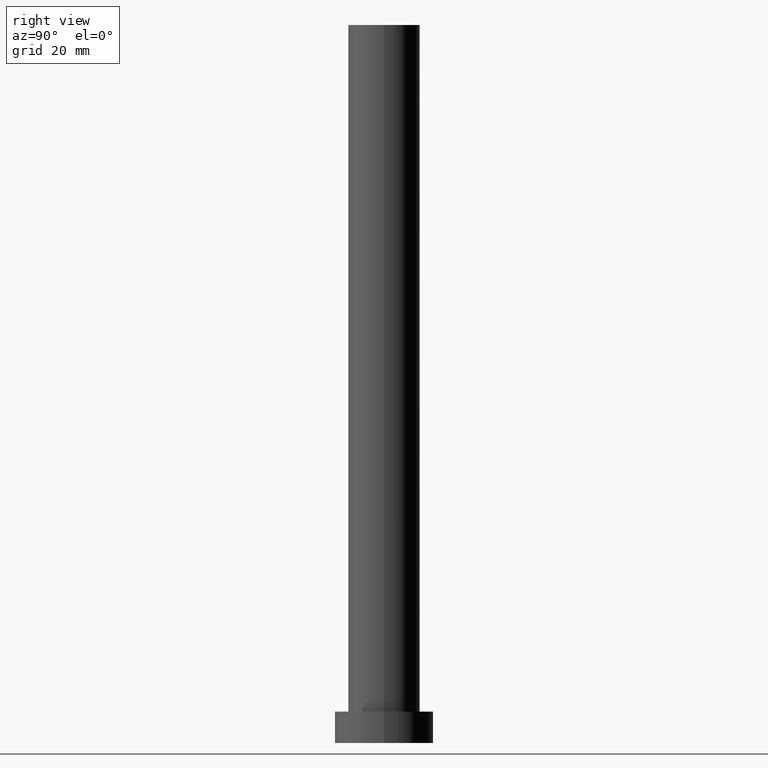
[diagram: clean part render]
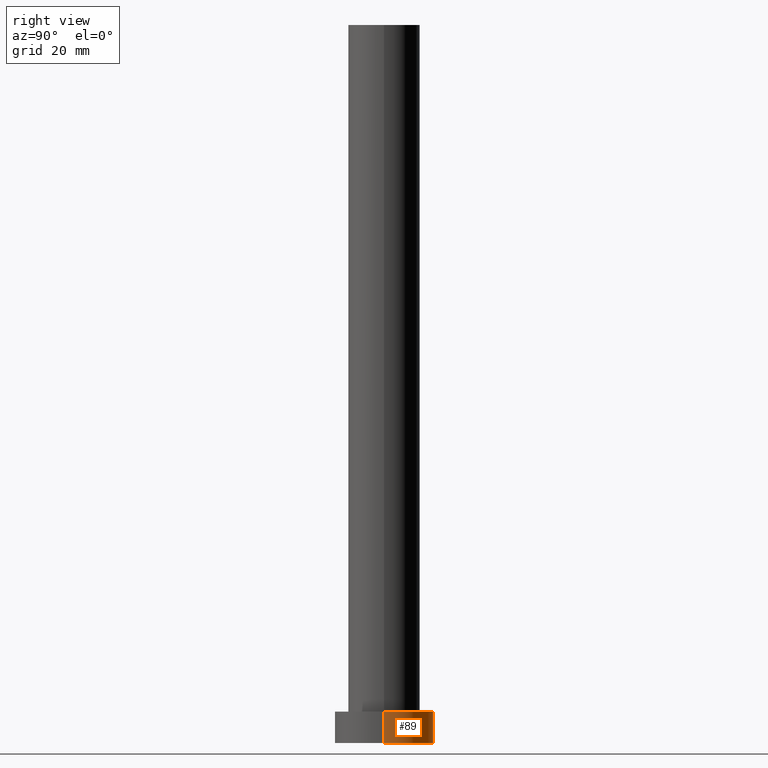
[diagram: same view with one face highlighted and labeled with its STEP entity id]
A machine part, right view. The second image highlights one B-rep face of the part: STEP entity #89.
In plain terms, the highlighted cylindrical surface (partial cylindrical patch) has radius 11 mm, axis along (-0, -0, -1).
Its self-contained STEP definition (entity closure, byte-faithful):
#1 = FACE_OUTER_BOUND ( 'NONE', #85, .T. ) ;
#14 = CARTESIAN_POINT ( 'NONE',  ( -11.00000000000000000, 0.000000000000000000, 7.000000000000000000 ) ) ;
#18 = AXIS2_PLACEMENT_3D ( 'NONE', #237, #255, #80 ) ;
#21 = VERTEX_POINT ( 'NONE', #93 ) ;
#27 = ORIENTED_EDGE ( 'NONE', *, *, #182, .T. ) ;
#32 = VERTEX_POINT ( 'NONE', #69 ) ;
#34 = DIRECTION ( 'NONE',  ( 1.000000000000000000, 0.000000000000000000, 0.000000000000000000 ) ) ;
#40 = EDGE_CURVE ( 'NONE', #21, #199, #245, .T. ) ;
#60 = LINE ( 'NONE', #215, #216 ) ;
#64 = CIRCLE ( 'NONE', #18, 11.00000000000000000 ) ;
#69 = CARTESIAN_POINT ( 'NONE',  ( -11.00000000000000000, 0.000000000000000000, 0.000000000000000000 ) ) ;
#80 = DIRECTION ( 'NONE',  ( 1.000000000000000000, 0.000000000000000000, 0.000000000000000000 ) ) ;
#81 = CARTESIAN_POINT ( 'NONE',  ( 11.00000000000000000, 1.347111479062088405E-15, 0.000000000000000000 ) ) ;
#85 = EDGE_LOOP ( 'NONE', ( #140, #242, #27, #90 ) ) ;
#89 = ADVANCED_FACE ( 'NONE', ( #1 ), #195, .T. ) ;
#90 = ORIENTED_EDGE ( 'NONE', *, *, #142, .F. ) ;
#93 = CARTESIAN_POINT ( 'NONE',  ( 11.00000000000000000, 1.347111479062088405E-15, 7.000000000000000000 ) ) ;
#133 = DIRECTION ( 'NONE',  ( -0.000000000000000000, -0.000000000000000000, -1.000000000000000000 ) ) ;
#135 = DIRECTION ( 'NONE',  ( -0.000000000000000000, -0.000000000000000000, -1.000000000000000000 ) ) ;
#140 = ORIENTED_EDGE ( 'NONE', *, *, #40, .F. ) ;
#142 = EDGE_CURVE ( 'NONE', #199, #32, #155, .T. ) ;
#150 = VERTEX_POINT ( 'NONE', #81 ) ;
#151 = DIRECTION ( 'NONE',  ( 0.000000000000000000, 0.000000000000000000, 1.000000000000000000 ) ) ;
#152 = AXIS2_PLACEMENT_3D ( 'NONE', #223, #151, #34 ) ;
#155 = LINE ( 'NONE', #14, #183 ) ;
#182 = EDGE_CURVE ( 'NONE', #150, #32, #64, .T. ) ;
#183 = VECTOR ( 'NONE', #133, 1000.000000000000000 ) ;
#193 = CARTESIAN_POINT ( 'NONE',  ( 0.000000000000000000, 0.000000000000000000, 7.000000000000000000 ) ) ;
#195 = CYLINDRICAL_SURFACE ( 'NONE', #246, 11.00000000000000000 ) ;
#199 = VERTEX_POINT ( 'NONE', #236 ) ;
#202 = EDGE_CURVE ( 'NONE', #21, #150, #60, .T. ) ;
#214 = DIRECTION ( 'NONE',  ( -1.000000000000000000, 0.000000000000000000, 0.000000000000000000 ) ) ;
#215 = CARTESIAN_POINT ( 'NONE',  ( 11.00000000000000000, 1.347111479062088405E-15, 7.000000000000000000 ) ) ;
#216 = VECTOR ( 'NONE', #135, 1000.000000000000000 ) ;
#218 = DIRECTION ( 'NONE',  ( -0.000000000000000000, -0.000000000000000000, -1.000000000000000000 ) ) ;
#223 = CARTESIAN_POINT ( 'NONE',  ( 0.000000000000000000, 0.000000000000000000, 7.000000000000000000 ) ) ;
#236 = CARTESIAN_POINT ( 'NONE',  ( -11.00000000000000000, 0.000000000000000000, 7.000000000000000000 ) ) ;
#237 = CARTESIAN_POINT ( 'NONE',  ( 0.000000000000000000, 0.000000000000000000, 0.000000000000000000 ) ) ;
#242 = ORIENTED_EDGE ( 'NONE', *, *, #202, .T. ) ;
#245 = CIRCLE ( 'NONE', #152, 11.00000000000000000 ) ;
#246 = AXIS2_PLACEMENT_3D ( 'NONE', #193, #218, #214 ) ;
#255 = DIRECTION ( 'NONE',  ( 0.000000000000000000, 0.000000000000000000, 1.000000000000000000 ) ) ;